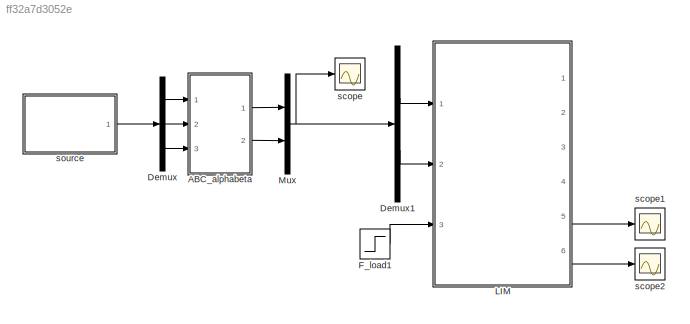
MODEL slx_ff32a7d3052e
KIND model
CONFIG AbsTol = auto
CONFIG EnableMultiTasking = off
CONFIG FixedStep = 1e-5
CONFIG MaxStep = 1
CONFIG MinStep = auto
CONFIG RelTol = 1e-3
CONFIG SampleTimeConstraint = Unconstrained
CONFIG Solver = ode4
CONFIG SolverName = ode4
CONFIG StartTime = 0.0
CONFIG StopTime = 1
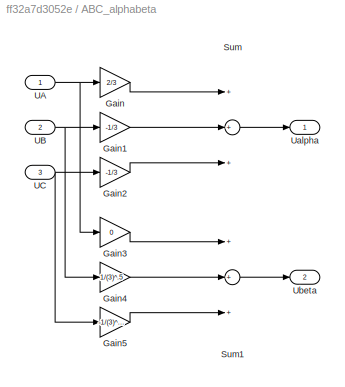
BLOCK [SubSystem] ABC_alphabeta
  Ports = [3, 2]
  RequestExecContextInheritance = off
  Variant = off
BLOCK [Gain] ABC_alphabeta/Gain
  Gain = 2/3
BLOCK [Gain] ABC_alphabeta/Gain1
  Gain = -1/3
BLOCK [Gain] ABC_alphabeta/Gain2
  Gain = -1/3
BLOCK [Gain] ABC_alphabeta/Gain3
  Gain = 0
BLOCK [Gain] ABC_alphabeta/Gain4
  Gain = 1/(3)^.5
BLOCK [Gain] ABC_alphabeta/Gain5
  Gain = -1/(3)^.5
BLOCK [Sum] ABC_alphabeta/Sum
  InputSameDT = off
  Inputs = +++
  OutDataTypeStr = Inherit: Inherit via internal rule
  Ports = [3, 1]
BLOCK [Sum] ABC_alphabeta/Sum1
  InputSameDT = off
  Inputs = +++
  OutDataTypeStr = Inherit: Inherit via internal rule
  Ports = [3, 1]
BLOCK [Inport] ABC_alphabeta/UA
  IconDisplay = Port number
BLOCK [Inport] ABC_alphabeta/UB
  IconDisplay = Port number
  Port = 2
BLOCK [Inport] ABC_alphabeta/UC
  IconDisplay = Port number
  Port = 3
BLOCK [Outport] ABC_alphabeta/Ualpha
  IconDisplay = Port number
BLOCK [Outport] ABC_alphabeta/Ubeta
  IconDisplay = Port number
  Port = 2
BLOCK [Demux] Demux
  DisplayOption = bar
  Outputs = 3
  Ports = [1, 3]
BLOCK [Demux] Demux1
  DisplayOption = bar
  Outputs = 2
  Ports = [1, 2]
BLOCK [Step] F_load1
  After = 1000
  SampleTime = 0
  Time = 0
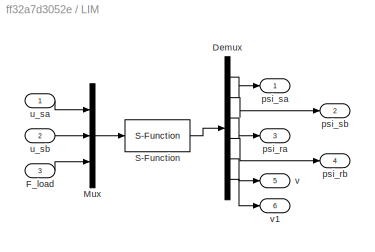
BLOCK [SubSystem] LIM
  Ports = [3, 6]
  RequestExecContextInheritance = off
  Variant = off
BLOCK [Demux] LIM/Demux
  DisplayOption = bar
  Outputs = 6
  Ports = [1, 6]
BLOCK [Inport] LIM/F_load
  IconDisplay = Port number
  Port = 3
BLOCK [Mux] LIM/Mux
  DisplayOption = bar
  Inputs = 3
  Ports = [3, 1]
BLOCK [S-Function] LIM/S-Function
  EnableBusSupport = off
  FunctionName = lim_model
  Ports = [1, 1]
  SFcnIsStateOwnerBlock = off
  SFunctionDeploymentMode = off
BLOCK [Outport] LIM/psi_ra
  IconDisplay = Port number
  Port = 3
BLOCK [Outport] LIM/psi_rb
  IconDisplay = Port number
  Port = 4
BLOCK [Outport] LIM/psi_sa
  IconDisplay = Port number
BLOCK [Outport] LIM/psi_sb
  IconDisplay = Port number
  Port = 2
BLOCK [Inport] LIM/u_sa
  IconDisplay = Port number
BLOCK [Inport] LIM/u_sb
  IconDisplay = Port number
  Port = 2
BLOCK [Outport] LIM/v
  IconDisplay = Port number
  Port = 5
BLOCK [Outport] LIM/v1
  IconDisplay = Port number
  Port = 6
BLOCK [Mux] Mux
  DisplayOption = bar
  Inputs = 2
  Ports = [2, 1]
BLOCK [Scope] scope
  NumInputPorts = 1
  Ports = [1]
  ScopeSpecificationString = Simulink.scopes.TimeScopeBlockCfg('CurrentConfiguration', extmgr.ConfigurationSet(extmgr.Configuration('Core','General UI',true,'FigureColor',[1 1 1]),extmgr.Configuration('Core','Source UI',true),extmgr.Configuration('Sources','WiredSimulink',true),extmgr.Configuration('Visuals','Time Domain',true,'SerializedDisplays',{struct('MinYLimReal','-625.00000','MaxYLimReal','625.00000','YLabelReal','','M...<+1690ch>
BLOCK [Scope] scope1
  NumInputPorts = 1
  Ports = [1]
  ScopeSpecificationString = Simulink.scopes.TimeScopeBlockCfg('CurrentConfiguration', extmgr.ConfigurationSet(extmgr.Configuration('Core','General UI',true,'FigureColor',[1 1 1]),extmgr.Configuration('Core','Source UI',true),extmgr.Configuration('Sources','WiredSimulink',true,'DataLoggingVariableName','ScopeData1'),extmgr.Configuration('Visuals','Time Domain',true,'SerializedDisplays',{struct('MinYLimReal','-1.02452','MaxYLi...<+1685ch>
BLOCK [Scope] scope2
  NumInputPorts = 1
  Ports = [1]
  ScopeSpecificationString = Simulink.scopes.TimeScopeBlockCfg('CurrentConfiguration', extmgr.ConfigurationSet(extmgr.Configuration('Core','General UI',true,'FigureColor',[1 1 1]),extmgr.Configuration('Core','Source UI',true),extmgr.Configuration('Sources','WiredSimulink',true,'DataLoggingVariableName','ScopeData2'),extmgr.Configuration('Visuals','Time Domain',true,'SerializedDisplays',{struct('MinYLimReal','-3432.01704','Max...<+1711ch>
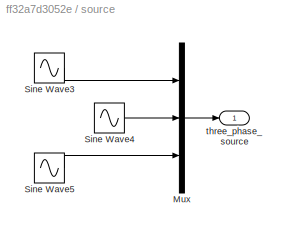
BLOCK [SubSystem] source
  Ports = [0, 1]
  RequestExecContextInheritance = off
  Variant = off
BLOCK [Mux] source/Mux
  DisplayOption = bar
  Inputs = 3
  Ports = [3, 1]
BLOCK [Sin] source/Sine Wave3
  Amplitude = 500
  Frequency = 2*pi*50
  Ports = [0, 1]
  SampleTime = 0
BLOCK [Sin] source/Sine Wave4
  Amplitude = 500
  Frequency = 2*pi*50
  Phase = -2*pi/3
  Ports = [0, 1]
  SampleTime = 0
BLOCK [Sin] source/Sine Wave5
  Amplitude = 500
  Frequency = 2*pi*50
  Phase = 2*pi/3
  Ports = [0, 1]
  SampleTime = 0
BLOCK [Outport] source/three_phase_source
  IconDisplay = Port number
LINE ABC_alphabeta/Gain1:1 -> ABC_alphabeta/Sum:2
LINE ABC_alphabeta/Gain2:1 -> ABC_alphabeta/Sum:3
LINE ABC_alphabeta/Gain3:1 -> ABC_alphabeta/Sum1:1
LINE ABC_alphabeta/Gain4:1 -> ABC_alphabeta/Sum1:2
LINE ABC_alphabeta/Gain5:1 -> ABC_alphabeta/Sum1:3
LINE ABC_alphabeta/Gain:1 -> ABC_alphabeta/Sum:1
LINE ABC_alphabeta/Sum1:1 -> ABC_alphabeta/Ubeta:1
LINE ABC_alphabeta/Sum:1 -> ABC_alphabeta/Ualpha:1
NET ABC_alphabeta/UA:1 -> ABC_alphabeta/Gain3:1, ABC_alphabeta/Gain:1
NET ABC_alphabeta/UB:1 -> ABC_alphabeta/Gain1:1, ABC_alphabeta/Gain4:1
NET ABC_alphabeta/UC:1 -> ABC_alphabeta/Gain2:1, ABC_alphabeta/Gain5:1
LINE ABC_alphabeta:1 -> Mux:1
LINE ABC_alphabeta:2 -> Mux:2
LINE Demux1:1 -> LIM:1
LINE Demux1:2 -> LIM:2
LINE Demux:1 -> ABC_alphabeta:1
LINE Demux:2 -> ABC_alphabeta:2
LINE Demux:3 -> ABC_alphabeta:3
LINE F_load1:1 -> LIM:3
LINE LIM/Demux:1 -> LIM/psi_sa:1
LINE LIM/Demux:2 -> LIM/psi_sb:1
LINE LIM/Demux:3 -> LIM/psi_ra:1
LINE LIM/Demux:4 -> LIM/psi_rb:1
LINE LIM/Demux:5 -> LIM/v:1
LINE LIM/Demux:6 -> LIM/v1:1
LINE LIM/F_load:1 -> LIM/Mux:3
LINE LIM/Mux:1 -> LIM/S-Function:1
LINE LIM/S-Function:1 -> LIM/Demux:1
LINE LIM/u_sa:1 -> LIM/Mux:1
LINE LIM/u_sb:1 -> LIM/Mux:2
LINE LIM:5 -> scope1:1
LINE LIM:6 -> scope2:1
NET Mux:1 -> Demux1:1, scope:1
LINE source/Mux:1 -> source/three_phase_source:1
LINE source/Sine Wave3:1 -> source/Mux:1
LINE source/Sine Wave4:1 -> source/Mux:2
LINE source/Sine Wave5:1 -> source/Mux:3
LINE source:1 -> Demux:1
note: NET lines group one-source signal fan-out (src -> all destinations, sorted); 1:1 wires keep LINE
